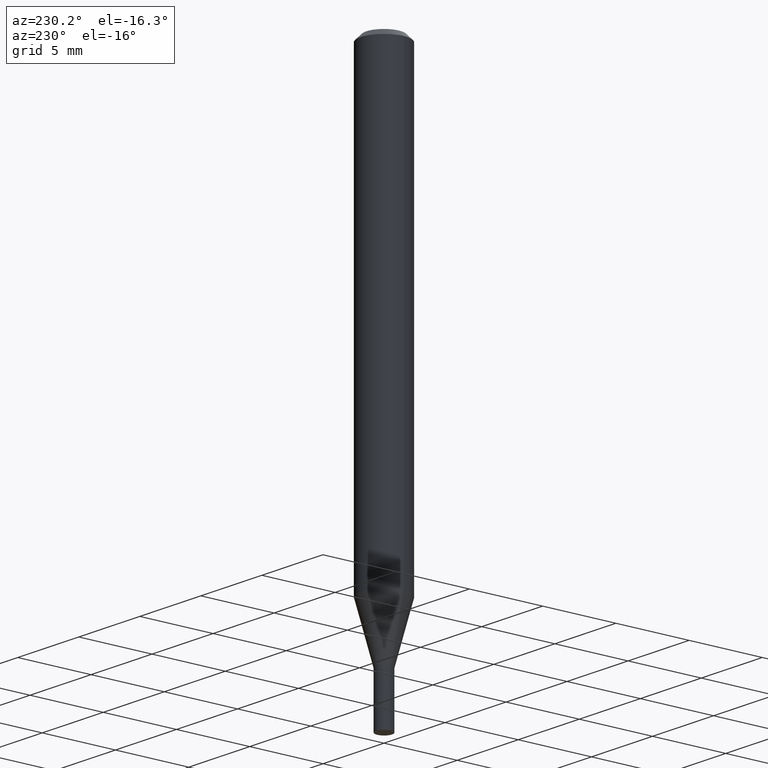
[diagram: clean part render]
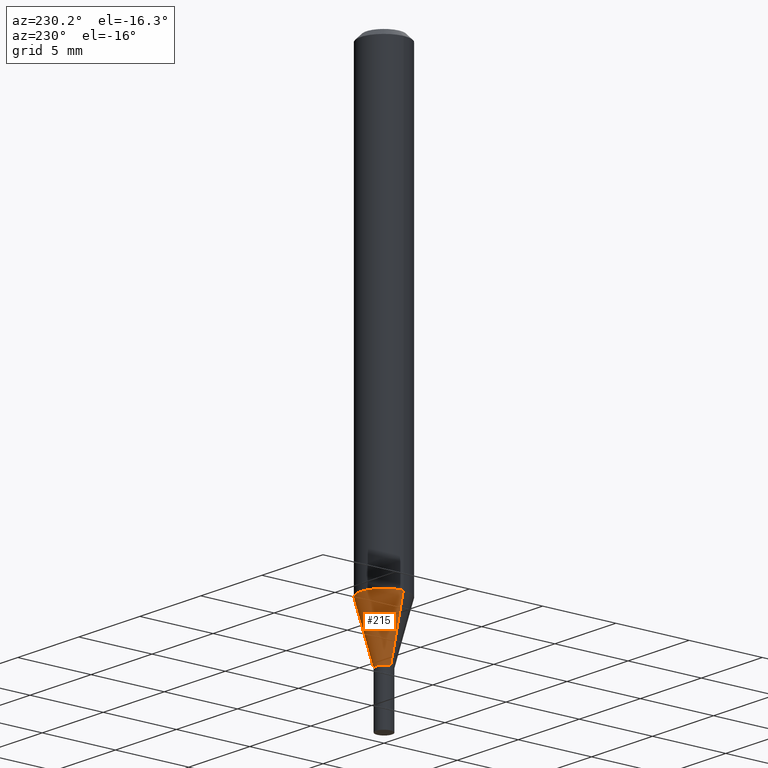
[diagram: same view with one face highlighted and labeled with its STEP entity id]
A machine part, auxiliary view. The second image highlights one B-rep face of the part: STEP entity #215.
In plain terms, the highlighted conical surface has half-angle 15 deg.
Its self-contained STEP definition (entity closure, byte-faithful):
#21 = LINE ( 'NONE', #295, #141 ) ;
#23 = CARTESIAN_POINT ( 'NONE',  ( 0.06249999999999999306, -4.654095453761023408E-15, -1.207985916889676270 ) ) ;
#49 = VERTEX_POINT ( 'NONE', #427 ) ;
#96 = AXIS2_PLACEMENT_3D ( 'NONE', #268, #132, #300 ) ;
#98 = VECTOR ( 'NONE', #100, 39.37007874015747433 ) ;
#100 = DIRECTION ( 'NONE',  ( -0.2588190451025214611, 5.211531920934551042E-15, 0.9659258262890682012 ) ) ;
#101 = ORIENTED_EDGE ( 'NONE', *, *, #457, .T. ) ;
#112 = DIRECTION ( 'NONE',  ( 1.000000000000000000, -6.982962677686262766E-15, 0.000000000000000000 ) ) ;
#132 = DIRECTION ( 'NONE',  ( -2.445468806185136597E-29, 3.491481338843145583E-15, 1.000000000000000000 ) ) ;
#140 = DIRECTION ( 'NONE',  ( 0.2588190451025214611, 1.565188264969621573E-15, 0.9659258262890682012 ) ) ;
#141 = VECTOR ( 'NONE', #140, 39.37007874015747433 ) ;
#159 = CIRCLE ( 'NONE', #448, 0.06250000000000000000 ) ;
#161 = CARTESIAN_POINT ( 'NONE',  ( -0.06249999999999999306, -3.773571076555568334E-15, -1.207985916889676270 ) ) ;
#169 = ORIENTED_EDGE ( 'NONE', *, *, #290, .F. ) ;
#170 = FACE_OUTER_BOUND ( 'NONE', #223, .T. ) ;
#191 = EDGE_CURVE ( 'NONE', #49, #282, #284, .T. ) ;
#203 = ORIENTED_EDGE ( 'NONE', *, *, #376, .F. ) ;
#215 = ADVANCED_FACE ( 'NONE', ( #170 ), #383, .T. ) ;
#223 = EDGE_LOOP ( 'NONE', ( #366, #101, #203, #169 ) ) ;
#268 = CARTESIAN_POINT ( 'NONE',  ( 3.328283045217970545E-29, -4.751906102165520463E-15, -1.360999999999999988 ) ) ;
#271 = CARTESIAN_POINT ( 'NONE',  ( -0.02149999999999992889, -4.599139413977099971E-15, -1.360999999999999988 ) ) ;
#273 = LINE ( 'NONE', #271, #98 ) ;
#275 = VERTEX_POINT ( 'NONE', #161 ) ;
#282 = VERTEX_POINT ( 'NONE', #372 ) ;
#283 = CARTESIAN_POINT ( 'NONE',  ( 2.954091878064654281E-29, -4.217660286405631739E-15, -1.207985916889676270 ) ) ;
#284 = CIRCLE ( 'NONE', #96, 0.02149999999999992889 ) ;
#290 = EDGE_CURVE ( 'NONE', #49, #323, #21, .T. ) ;
#295 = CARTESIAN_POINT ( 'NONE',  ( 0.02149999999999992889, -4.902039799735775292E-15, -1.360999999999999988 ) ) ;
#296 = CARTESIAN_POINT ( 'NONE',  ( 3.328283045217970545E-29, -4.751906102165520463E-15, -1.360999999999999988 ) ) ;
#300 = DIRECTION ( 'NONE',  ( 1.000000000000000000, -6.982962677686288799E-15, 0.000000000000000000 ) ) ;
#316 = DIRECTION ( 'NONE',  ( -2.445468806185136597E-29, 3.491481338843145583E-15, 1.000000000000000000 ) ) ;
#323 = VERTEX_POINT ( 'NONE', #23 ) ;
#366 = ORIENTED_EDGE ( 'NONE', *, *, #191, .T. ) ;
#372 = CARTESIAN_POINT ( 'NONE',  ( -0.02149999999999992889, -4.186355245266334152E-15, -1.360999999999999988 ) ) ;
#376 = EDGE_CURVE ( 'NONE', #323, #275, #159, .T. ) ;
#383 = CONICAL_SURFACE ( 'NONE', #438, 0.02149999999999992889, 0.2617993877991501295 ) ;
#391 = DIRECTION ( 'NONE',  ( 1.000000000000000000, -6.982962677686288799E-15, 0.000000000000000000 ) ) ;
#427 = CARTESIAN_POINT ( 'NONE',  ( 0.02149999999999992889, -4.902039799735775292E-15, -1.360999999999999988 ) ) ;
#433 = DIRECTION ( 'NONE',  ( -2.445468806185136597E-29, 3.491481338843145583E-15, 1.000000000000000000 ) ) ;
#438 = AXIS2_PLACEMENT_3D ( 'NONE', #296, #316, #391 ) ;
#448 = AXIS2_PLACEMENT_3D ( 'NONE', #283, #433, #112 ) ;
#457 = EDGE_CURVE ( 'NONE', #282, #275, #273, .T. ) ;